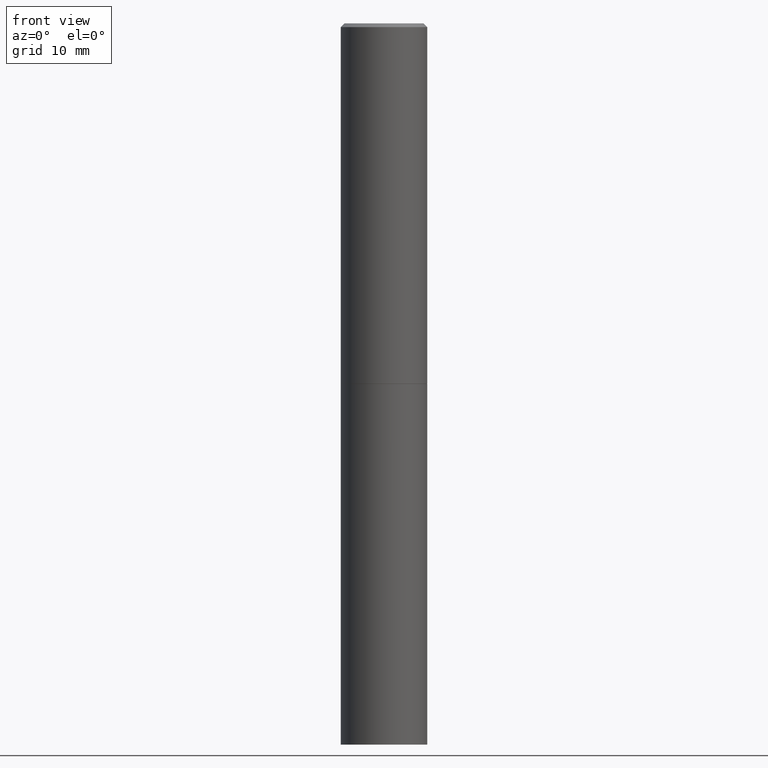
[diagram: clean part render]
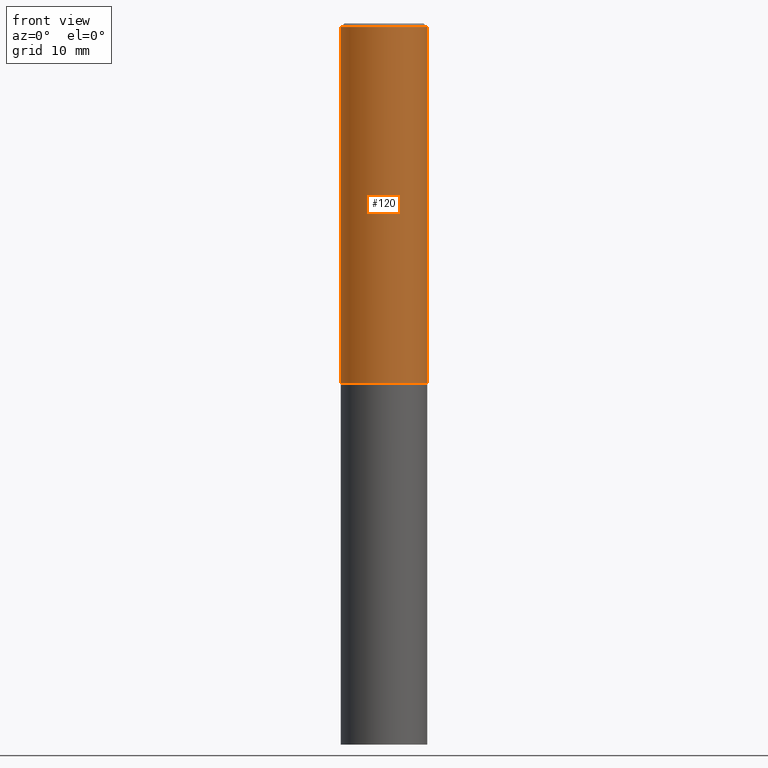
[diagram: same view with one face highlighted and labeled with its STEP entity id]
A machine part, front view. The second image highlights one B-rep face of the part: STEP entity #120.
In plain terms, the highlighted cylindrical surface (partial cylindrical patch) has radius 5.9995 mm, axis along (-0, 0, 1).
Its self-contained STEP definition (entity closure, byte-faithful):
#13 = VERTEX_POINT ( 'NONE', #242 ) ;
#20 = CARTESIAN_POINT ( 'NONE',  ( 0.2361999999999999933, -8.518865318643383648E-15, -1.967500000000000027 ) ) ;
#31 = VECTOR ( 'NONE', #276, 39.37007874015748143 ) ;
#37 = DIRECTION ( 'NONE',  ( -2.445468806185136597E-29, 3.491481338843145583E-15, 1.000000000000000000 ) ) ;
#46 = EDGE_CURVE ( 'NONE', #175, #111, #209, .T. ) ;
#83 = DIRECTION ( 'NONE',  ( 1.000000000000000000, -6.982962677686265133E-15, 0.000000000000000000 ) ) ;
#89 = CARTESIAN_POINT ( 'NONE',  ( 0.000000000000000000, 0.000000000000000000, 0.000000000000000000 ) ) ;
#91 = AXIS2_PLACEMENT_3D ( 'NONE', #271, #37, #225 ) ;
#101 = AXIS2_PLACEMENT_3D ( 'NONE', #132, #246, #83 ) ;
#107 = EDGE_CURVE ( 'NONE', #13, #152, #304, .T. ) ;
#111 = VERTEX_POINT ( 'NONE', #20 ) ;
#120 = ADVANCED_FACE ( 'NONE', ( #232 ), #254, .T. ) ;
#122 = ORIENTED_EDGE ( 'NONE', *, *, #360, .F. ) ;
#128 = VECTOR ( 'NONE', #184, 39.37007874015748143 ) ;
#132 = CARTESIAN_POINT ( 'NONE',  ( 4.811459876169256232E-29, -6.869489534173888700E-15, -1.967500000000000027 ) ) ;
#146 = DIRECTION ( 'NONE',  ( 1.000000000000000000, -6.982962677686266711E-15, 4.876176775795935793E-29 ) ) ;
#151 = DIRECTION ( 'NONE',  ( -2.445468806185136597E-29, 3.491481338843145583E-15, 1.000000000000000000 ) ) ;
#152 = VERTEX_POINT ( 'NONE', #309 ) ;
#167 = CARTESIAN_POINT ( 'NONE',  ( -0.2361999999999998545, 1.678301941865355605E-15, -1.161852468318208056E-29 ) ) ;
#175 = VERTEX_POINT ( 'NONE', #314 ) ;
#184 = DIRECTION ( 'NONE',  ( -2.445468806185136877E-29, 3.491481338843145188E-15, 1.000000000000000000 ) ) ;
#188 = LINE ( 'NONE', #167, #31 ) ;
#209 = CIRCLE ( 'NONE', #101, 0.2361999999999999933 ) ;
#210 = LINE ( 'NONE', #362, #128 ) ;
#214 = AXIS2_PLACEMENT_3D ( 'NONE', #89, #151, #146 ) ;
#225 = DIRECTION ( 'NONE',  ( 1.000000000000000000, -6.982962677686266711E-15, 0.000000000000000000 ) ) ;
#228 = EDGE_LOOP ( 'NONE', ( #122, #336, #287, #279 ) ) ;
#232 = FACE_OUTER_BOUND ( 'NONE', #228, .T. ) ;
#242 = CARTESIAN_POINT ( 'NONE',  ( -0.2361999999999997712, 1.579546157692631452E-15, -0.02000000000000007674 ) ) ;
#246 = DIRECTION ( 'NONE',  ( -2.445468806185136597E-29, 3.491481338843145583E-15, 1.000000000000000000 ) ) ;
#254 = CYLINDRICAL_SURFACE ( 'NONE', #214, 0.2361999999999998545 ) ;
#271 = CARTESIAN_POINT ( 'NONE',  ( 4.890937612370292426E-31, -6.982962677686317493E-17, -0.02000000000000007674 ) ) ;
#276 = DIRECTION ( 'NONE',  ( -2.445468806185136877E-29, 3.491481338843145188E-15, 1.000000000000000000 ) ) ;
#279 = ORIENTED_EDGE ( 'NONE', *, *, #107, .F. ) ;
#281 = EDGE_CURVE ( 'NONE', #111, #152, #210, .T. ) ;
#287 = ORIENTED_EDGE ( 'NONE', *, *, #281, .T. ) ;
#304 = CIRCLE ( 'NONE', #91, 0.2361999999999997712 ) ;
#309 = CARTESIAN_POINT ( 'NONE',  ( 0.2361999999999997712, -1.690279253850497193E-15, -0.02000000000000007674 ) ) ;
#314 = CARTESIAN_POINT ( 'NONE',  ( -0.2362000000000000210, -1.791357638610017633E-15, -1.967500000000000027 ) ) ;
#336 = ORIENTED_EDGE ( 'NONE', *, *, #46, .T. ) ;
#360 = EDGE_CURVE ( 'NONE', #175, #13, #188, .T. ) ;
#362 = CARTESIAN_POINT ( 'NONE',  ( 0.2361999999999998545, -1.649375784469495145E-15, 1.151752954442999387E-29 ) ) ;